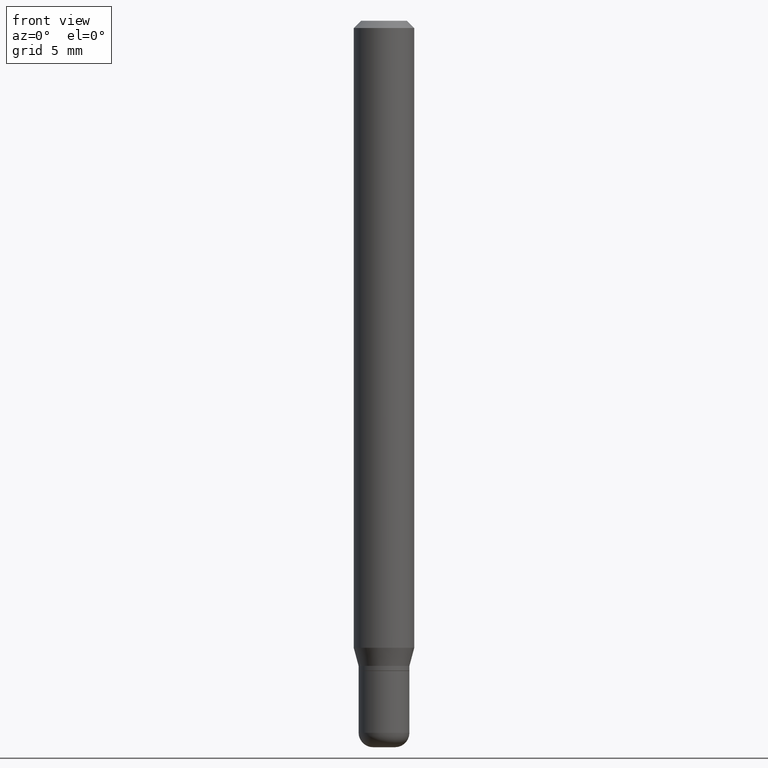
[diagram: clean part render]
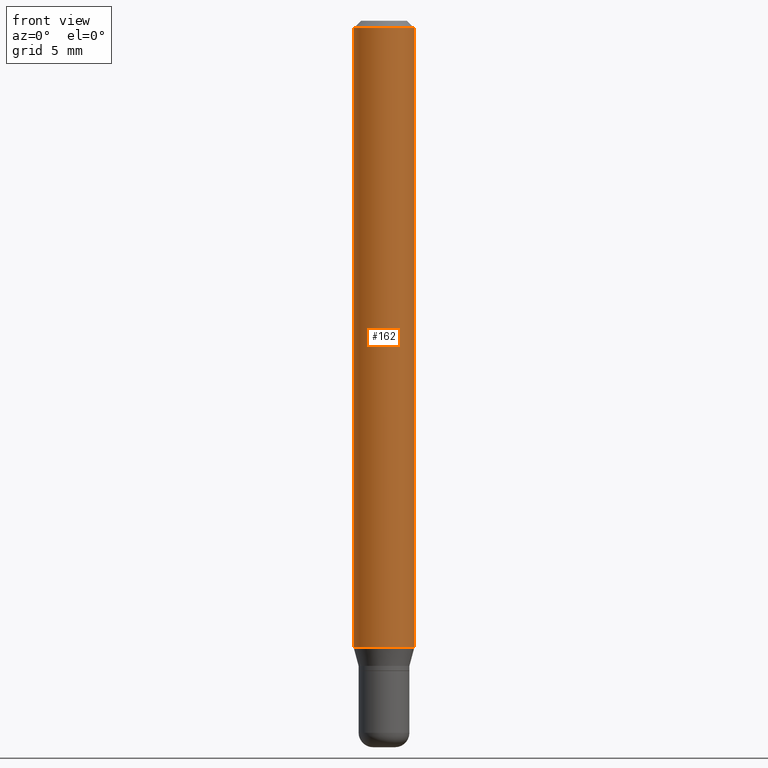
[diagram: same view with one face highlighted and labeled with its STEP entity id]
A machine part, front view. The second image highlights one B-rep face of the part: STEP entity #162.
In plain terms, the highlighted cylindrical surface (edge-blend (fillet) strip) has radius 1.5875 mm, axis along (-0, 0, 1).
Its self-contained STEP definition (entity closure, byte-faithful):
#4 = EDGE_CURVE ( 'NONE', #404, #74, #418, .T. ) ;
#22 = ORIENTED_EDGE ( 'NONE', *, *, #4, .F. ) ;
#26 = EDGE_CURVE ( 'NONE', #305, #404, #515, .T. ) ;
#28 = CARTESIAN_POINT ( 'NONE',  ( 0.000000000000000000, 0.000000000000000000, 0.000000000000000000 ) ) ;
#37 = DIRECTION ( 'NONE',  ( -2.445468806185136597E-29, 3.491481338843145583E-15, 1.000000000000000000 ) ) ;
#55 = VERTEX_POINT ( 'NONE', #157 ) ;
#71 = ORIENTED_EDGE ( 'NONE', *, *, #26, .F. ) ;
#74 = VERTEX_POINT ( 'NONE', #242 ) ;
#77 = DIRECTION ( 'NONE',  ( -2.445468806185136877E-29, 3.491481338843145188E-15, 1.000000000000000000 ) ) ;
#79 = DIRECTION ( 'NONE',  ( 1.000000000000000000, -6.982962677686262766E-15, 0.000000000000000000 ) ) ;
#80 = CARTESIAN_POINT ( 'NONE',  ( -0.06250000000000000000, 4.440892098500626162E-16, -3.074334431409316114E-30 ) ) ;
#82 = CARTESIAN_POINT ( 'NONE',  ( 3.668203209277632395E-31, -5.237222008264614861E-17, -0.01499999999999970281 ) ) ;
#83 = AXIS2_PLACEMENT_3D ( 'NONE', #82, #37, #208 ) ;
#93 = VECTOR ( 'NONE', #77, 39.37007874015748143 ) ;
#105 = ORIENTED_EDGE ( 'NONE', *, *, #399, .T. ) ;
#106 = LINE ( 'NONE', #435, #93 ) ;
#149 = CARTESIAN_POINT ( 'NONE',  ( -0.06250000000000000000, -4.076260075986598044E-15, -1.294679491924312087 ) ) ;
#155 = DIRECTION ( 'NONE',  ( -2.445468806185136877E-29, 3.491481338843145188E-15, 1.000000000000000000 ) ) ;
#157 = CARTESIAN_POINT ( 'NONE',  ( 0.06250000000000000000, -4.956784453192051541E-15, -1.294679491924312087 ) ) ;
#162 = ADVANCED_FACE ( 'NONE', ( #257 ), #388, .T. ) ;
#183 = VECTOR ( 'NONE', #155, 39.37007874015748143 ) ;
#191 = DIRECTION ( 'NONE',  ( -2.445468806185136597E-29, 3.491481338843145583E-15, 1.000000000000000000 ) ) ;
#208 = DIRECTION ( 'NONE',  ( 1.000000000000000000, -6.982962677686266711E-15, 0.000000000000000000 ) ) ;
#213 = CIRCLE ( 'NONE', #355, 0.06250000000000000000 ) ;
#241 = CARTESIAN_POINT ( 'NONE',  ( -0.06250000000000000000, -1.842271543109590267E-15, -0.01499999999999970281 ) ) ;
#242 = CARTESIAN_POINT ( 'NONE',  ( 0.06250000000000000000, -4.888073874380378612E-16, -0.01499999999999970281 ) ) ;
#252 = DIRECTION ( 'NONE',  ( -2.445468806185136597E-29, 3.491481338843145583E-15, 1.000000000000000000 ) ) ;
#257 = FACE_OUTER_BOUND ( 'NONE', #325, .T. ) ;
#282 = CARTESIAN_POINT ( 'NONE',  ( 3.166098311508526589E-29, -4.520349285836659871E-15, -1.294679491924312087 ) ) ;
#298 = DIRECTION ( 'NONE',  ( 1.000000000000000000, -6.982962677686266711E-15, 4.876176775795935793E-29 ) ) ;
#305 = VERTEX_POINT ( 'NONE', #149 ) ;
#325 = EDGE_LOOP ( 'NONE', ( #71, #105, #389, #22 ) ) ;
#330 = EDGE_CURVE ( 'NONE', #55, #74, #106, .T. ) ;
#355 = AXIS2_PLACEMENT_3D ( 'NONE', #282, #191, #79 ) ;
#361 = AXIS2_PLACEMENT_3D ( 'NONE', #28, #252, #298 ) ;
#388 = CYLINDRICAL_SURFACE ( 'NONE', #361, 0.06250000000000000000 ) ;
#389 = ORIENTED_EDGE ( 'NONE', *, *, #330, .T. ) ;
#399 = EDGE_CURVE ( 'NONE', #305, #55, #213, .T. ) ;
#404 = VERTEX_POINT ( 'NONE', #241 ) ;
#418 = CIRCLE ( 'NONE', #83, 0.06250000000000000000 ) ;
#435 = CARTESIAN_POINT ( 'NONE',  ( 0.06250000000000000000, -4.364351673553916694E-16, 3.047610484872459871E-30 ) ) ;
#515 = LINE ( 'NONE', #80, #183 ) ;